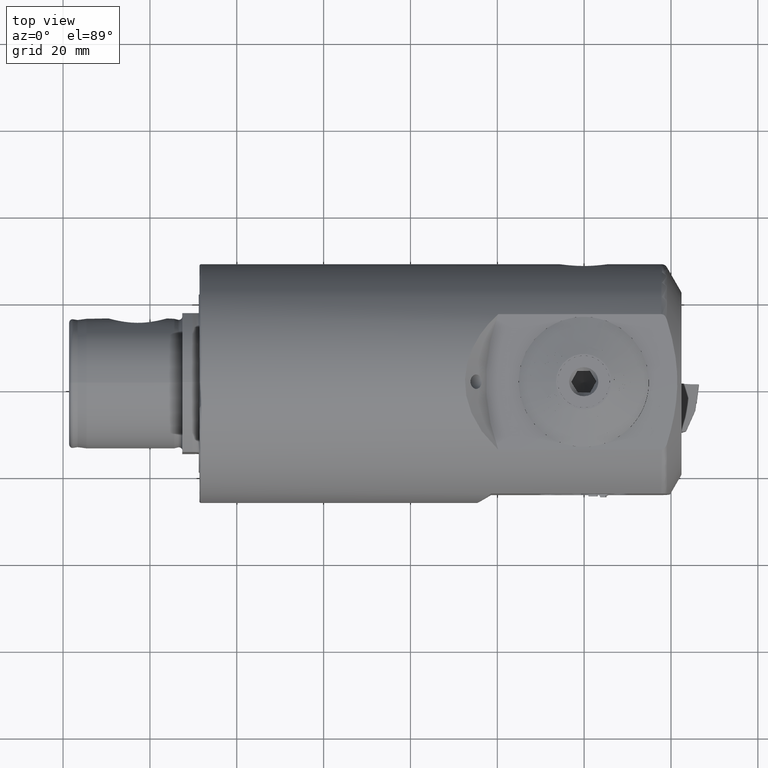
[diagram: clean part render]
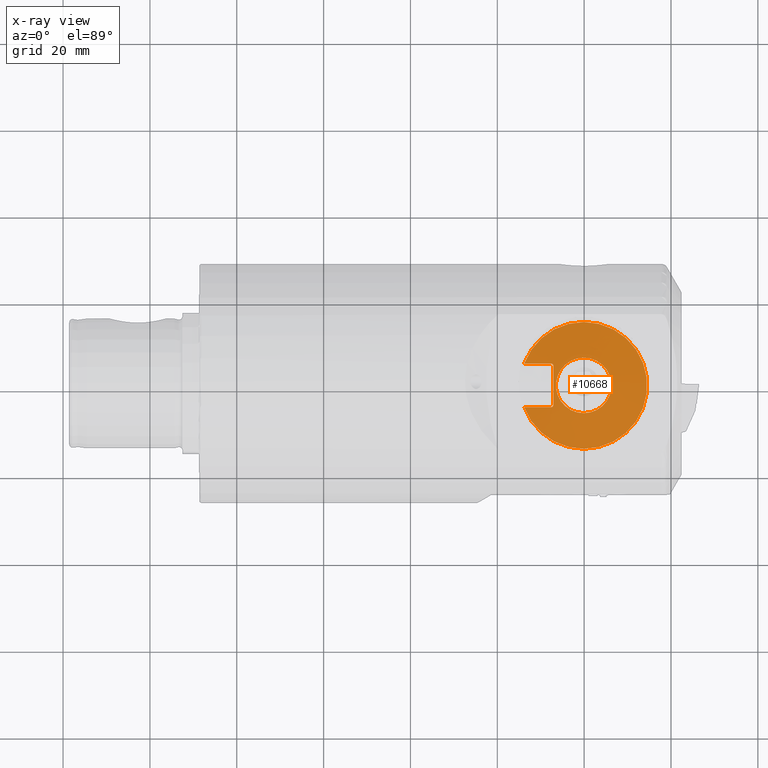
[diagram: x-ray — body ghosted, one internal face saturated and labeled with its STEP entity id]
A machine part, top view, then the same camera in x-ray: the body is ghosted and one INTERNAL B-rep face — a face not visible from any outside direction — is saturated and labeled: STEP entity #10668.
In plain terms, the highlighted planar face has unit normal (0, -0, -1).
Its self-contained STEP definition (entity closure, byte-faithful):
#377 = VERTEX_POINT ( 'NONE', #6774 ) ;
#480 = CARTESIAN_POINT ( 'NONE',  ( 0.0000000000000000000, -7.500000000000003600, -4.500000000000001800 ) ) ;
#1332 = EDGE_CURVE ( 'NONE', #377, #11260, #19509, .T. ) ;
#1711 = CARTESIAN_POINT ( 'NONE',  ( 0.0000000000000000000, -7.500000000000004400, 5.000000000000000900 ) ) ;
#2432 = EDGE_CURVE ( 'NONE', #7061, #32721, #17049, .T. ) ;
#2647 = EDGE_CURVE ( 'NONE', #32025, #7648, #3422, .T. ) ;
#3178 = DIRECTION ( 'NONE',  ( -1.000000000000000000, -1.203706215242022400E-035, -3.611118645726067200E-035 ) ) ;
#3422 = CIRCLE ( 'NONE', #34221, 0.5000000000000004400 ) ;
#3477 = DIRECTION ( 'NONE',  ( 3.611118645726067200E-035, 0.0000000000000000000, 1.000000000000000000 ) ) ;
#3773 = CARTESIAN_POINT ( 'NONE',  ( 0.0000000000000000000, -7.000000000000002700, 4.500000000000000900 ) ) ;
#4143 = LINE ( 'NONE', #21437, #15887 ) ;
#4214 = VERTEX_POINT ( 'NONE', #25973 ) ;
#4625 = CIRCLE ( 'NONE', #19014, 6.400000000000003000 ) ;
#4658 = ORIENTED_EDGE ( 'NONE', *, *, #2432, .F. ) ;
#4824 = CARTESIAN_POINT ( 'NONE',  ( 0.0000000000000000000, 0.0000000000000000000, 0.0000000000000000000 ) ) ;
#5137 = DIRECTION ( 'NONE',  ( -3.611118645726066200E-035, -7.022476047357001900E-039, -1.000000000000000000 ) ) ;
#5268 = DIRECTION ( 'NONE',  ( 1.000000000000000000, 1.203706215242022400E-035, 3.611118645726067200E-035 ) ) ;
#5375 = CARTESIAN_POINT ( 'NONE',  ( 0.0000000000000000000, 0.0000000000000000000, 0.0000000000000000000 ) ) ;
#5691 = PLANE ( 'NONE',  #24316 ) ;
#6313 = CARTESIAN_POINT ( 'NONE',  ( 0.0000000000000000000, 0.0000000000000000000, 0.0000000000000000000 ) ) ;
#6477 = DIRECTION ( 'NONE',  ( -1.203706215242022100E-035, 1.000000000000000000, 2.312964634635737000E-016 ) ) ;
#6774 = CARTESIAN_POINT ( 'NONE',  ( 0.0000000000000000000, 8.294577442039424800E-036, -6.400000000000003900 ) ) ;
#7061 = VERTEX_POINT ( 'NONE', #1711 ) ;
#7129 = ORIENTED_EDGE ( 'NONE', *, *, #35849, .F. ) ;
#7455 = EDGE_CURVE ( 'NONE', #31533, #32025, #4143, .T. ) ;
#7493 = CARTESIAN_POINT ( 'NONE',  ( 0.0000000000000000000, -13.71714255958580400, 5.000000000000000900 ) ) ;
#7648 = VERTEX_POINT ( 'NONE', #22365 ) ;
#7802 = DIRECTION ( 'NONE',  ( -3.611118645726065600E-035, -7.022476047357000600E-039, -1.000000000000000000 ) ) ;
#8677 = ORIENTED_EDGE ( 'NONE', *, *, #31427, .F. ) ;
#8683 = DIRECTION ( 'NONE',  ( -3.611118645726065600E-035, -7.022476047357000600E-039, -1.000000000000000000 ) ) ;
#9176 = ORIENTED_EDGE ( 'NONE', *, *, #2647, .F. ) ;
#9358 = DIRECTION ( 'NONE',  ( -3.611118645726066200E-035, -7.022476047357001900E-039, -1.000000000000000000 ) ) ;
#10343 = CARTESIAN_POINT ( 'NONE',  ( 0.0000000000000000000, -7.500000000000003600, 4.500000000000000900 ) ) ;
#10668 = ADVANCED_FACE ( 'NONE', ( #18954, #26926 ), #5691, .T. ) ;
#11260 = VERTEX_POINT ( 'NONE', #16022 ) ;
#11350 = DIRECTION ( 'NONE',  ( -1.203706215242021900E-035, -1.000000000000000000, -7.022476047357000600E-039 ) ) ;
#12135 = ORIENTED_EDGE ( 'NONE', *, *, #17772, .F. ) ;
#12455 = ORIENTED_EDGE ( 'NONE', *, *, #25512, .F. ) ;
#12647 = CIRCLE ( 'NONE', #21268, 14.60000000000000300 ) ;
#12701 = EDGE_CURVE ( 'NONE', #21383, #7061, #31942, .T. ) ;
#13075 = AXIS2_PLACEMENT_3D ( 'NONE', #5375, #5268, #5137 ) ;
#13357 = DIRECTION ( 'NONE',  ( 3.611118645726067200E-035, 0.0000000000000000000, 1.000000000000000000 ) ) ;
#13725 = DIRECTION ( 'NONE',  ( -1.000000000000000000, -1.203706215242022400E-035, -3.611118645726067200E-035 ) ) ;
#14545 = ORIENTED_EDGE ( 'NONE', *, *, #7455, .F. ) ;
#14757 = ORIENTED_EDGE ( 'NONE', *, *, #1332, .F. ) ;
#15649 = ORIENTED_EDGE ( 'NONE', *, *, #12701, .F. ) ;
#15887 = VECTOR ( 'NONE', #6477, 1000.000000000000000 ) ;
#16022 = CARTESIAN_POINT ( 'NONE',  ( 0.0000000000000000000, 7.837739514543064900E-016, 6.400000000000003900 ) ) ;
#17049 = LINE ( 'NONE', #29341, #32058 ) ;
#17772 = EDGE_CURVE ( 'NONE', #32721, #4214, #19017, .T. ) ;
#18400 = VERTEX_POINT ( 'NONE', #18995 ) ;
#18472 = AXIS2_PLACEMENT_3D ( 'NONE', #21138, #3178, #24122 ) ;
#18954 = FACE_BOUND ( 'NONE', #31566, .T. ) ;
#18995 = CARTESIAN_POINT ( 'NONE',  ( 0.0000000000000000000, 1.787984326755136600E-015, -14.60000000000000700 ) ) ;
#19014 = AXIS2_PLACEMENT_3D ( 'NONE', #6313, #27332, #9358 ) ;
#19017 = CIRCLE ( 'NONE', #18472, 14.60000000000000300 ) ;
#19509 = CIRCLE ( 'NONE', #13075, 6.400000000000003000 ) ;
#20009 = CARTESIAN_POINT ( 'NONE',  ( 0.0000000000000000000, -13.71714255958580600, -5.000000000000003600 ) ) ;
#21138 = CARTESIAN_POINT ( 'NONE',  ( 0.0000000000000000000, 0.0000000000000000000, 0.0000000000000000000 ) ) ;
#21166 = EDGE_LOOP ( 'NONE', ( #4658, #15649, #30981, #9176, #14545, #8677, #7129, #12135 ) ) ;
#21268 = AXIS2_PLACEMENT_3D ( 'NONE', #31675, #13725, #34729 ) ;
#21383 = VERTEX_POINT ( 'NONE', #22160 ) ;
#21420 = DIRECTION ( 'NONE',  ( 1.000000000000000000, 1.203706215242022400E-035, 3.611118645726067200E-035 ) ) ;
#21437 = CARTESIAN_POINT ( 'NONE',  ( 0.0000000000000000000, -7.500000000000002700, -5.000000000000002700 ) ) ;
#22160 = CARTESIAN_POINT ( 'NONE',  ( 0.0000000000000000000, -7.000000000000002700, 4.500000000000000900 ) ) ;
#22365 = CARTESIAN_POINT ( 'NONE',  ( 0.0000000000000000000, -7.000000000000002700, -4.500000000000000000 ) ) ;
#24122 = DIRECTION ( 'NONE',  ( -3.611118645726066700E-035, 8.881784197001252300E-016, -1.000000000000000000 ) ) ;
#24316 = AXIS2_PLACEMENT_3D ( 'NONE', #35611, #26681, #8683 ) ;
#24570 = DIRECTION ( 'NONE',  ( 3.611118645726065600E-035, -9.637352644315608800E-017, 1.000000000000000000 ) ) ;
#25512 = EDGE_CURVE ( 'NONE', #11260, #377, #4625, .T. ) ;
#25781 = DIRECTION ( 'NONE',  ( -1.000000000000000000, -1.203706215242022400E-035, -3.611118645726067200E-035 ) ) ;
#25973 = CARTESIAN_POINT ( 'NONE',  ( 0.0000000000000000000, -8.323415356402735800E-036, 14.60000000000000700 ) ) ;
#26681 = DIRECTION ( 'NONE',  ( 1.000000000000000000, 1.203706215242022400E-035, -3.611118645726065600E-035 ) ) ;
#26926 = FACE_OUTER_BOUND ( 'NONE', #21166, .T. ) ;
#27332 = DIRECTION ( 'NONE',  ( 1.000000000000000000, 1.203706215242022400E-035, 3.611118645726067200E-035 ) ) ;
#29222 = AXIS2_PLACEMENT_3D ( 'NONE', #10343, #31332, #13357 ) ;
#29341 = CARTESIAN_POINT ( 'NONE',  ( 0.0000000000000000000, -15.00000000000000700, 5.000000000000000900 ) ) ;
#30981 = ORIENTED_EDGE ( 'NONE', *, *, #35624, .F. ) ;
#31332 = DIRECTION ( 'NONE',  ( 1.000000000000000000, 1.203706215242022400E-035, 3.611118645726067200E-035 ) ) ;
#31427 = EDGE_CURVE ( 'NONE', #18400, #31533, #37347, .T. ) ;
#31533 = VERTEX_POINT ( 'NONE', #20009 ) ;
#31566 = EDGE_LOOP ( 'NONE', ( #14757, #12455 ) ) ;
#31675 = CARTESIAN_POINT ( 'NONE',  ( 0.0000000000000000000, 0.0000000000000000000, 0.0000000000000000000 ) ) ;
#31942 = CIRCLE ( 'NONE', #29222, 0.5000000000000004400 ) ;
#32025 = VERTEX_POINT ( 'NONE', #35766 ) ;
#32058 = VECTOR ( 'NONE', #11350, 1000.000000000000000 ) ;
#32389 = VECTOR ( 'NONE', #24570, 1000.000000000000000 ) ;
#32721 = VERTEX_POINT ( 'NONE', #7493 ) ;
#33321 = LINE ( 'NONE', #3773, #32389 ) ;
#34221 = AXIS2_PLACEMENT_3D ( 'NONE', #480, #21420, #3477 ) ;
#34729 = DIRECTION ( 'NONE',  ( -3.611118645726065600E-035, -7.022476047357000600E-039, -1.000000000000000000 ) ) ;
#35611 = CARTESIAN_POINT ( 'NONE',  ( 0.0000000000000000000, -0.5352187291570236200, 0.0000000000000000000 ) ) ;
#35624 = EDGE_CURVE ( 'NONE', #7648, #21383, #33321, .T. ) ;
#35766 = CARTESIAN_POINT ( 'NONE',  ( 0.0000000000000000000, -7.500000000000002700, -5.000000000000002700 ) ) ;
#35849 = EDGE_CURVE ( 'NONE', #4214, #18400, #12647, .T. ) ;
#36760 = AXIS2_PLACEMENT_3D ( 'NONE', #4824, #25781, #7802 ) ;
#37347 = CIRCLE ( 'NONE', #36760, 14.60000000000000300 ) ;